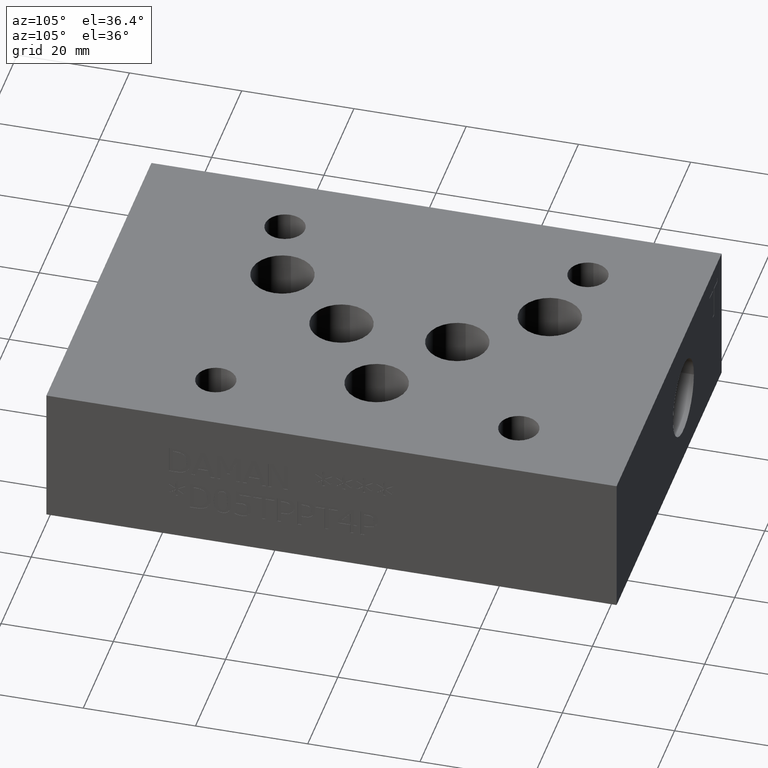
[diagram: clean part render]
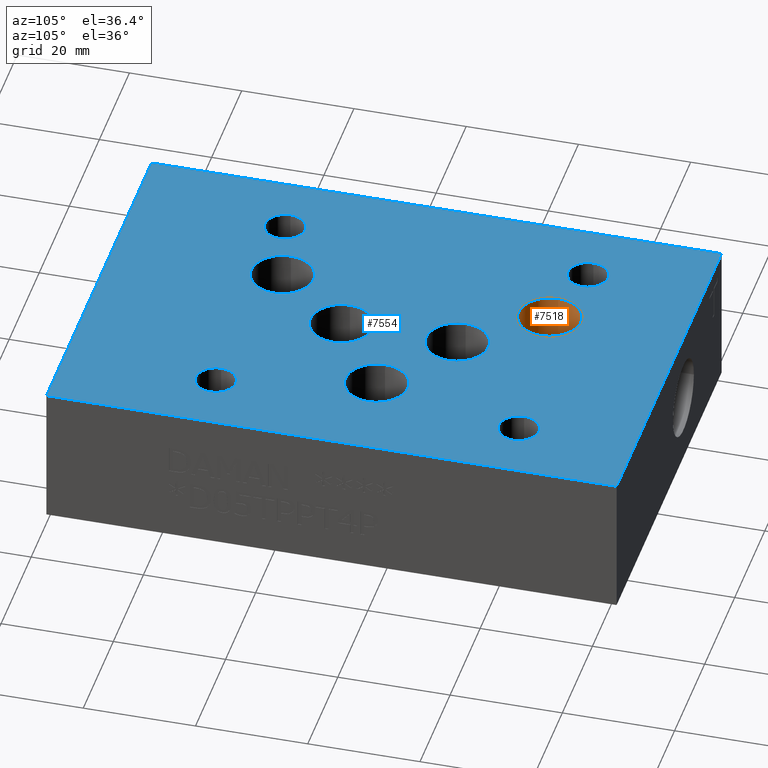
[diagram: same view with the hole feature highlighted: cylindrical wall and planar end face, labeled with their STEP entity ids]
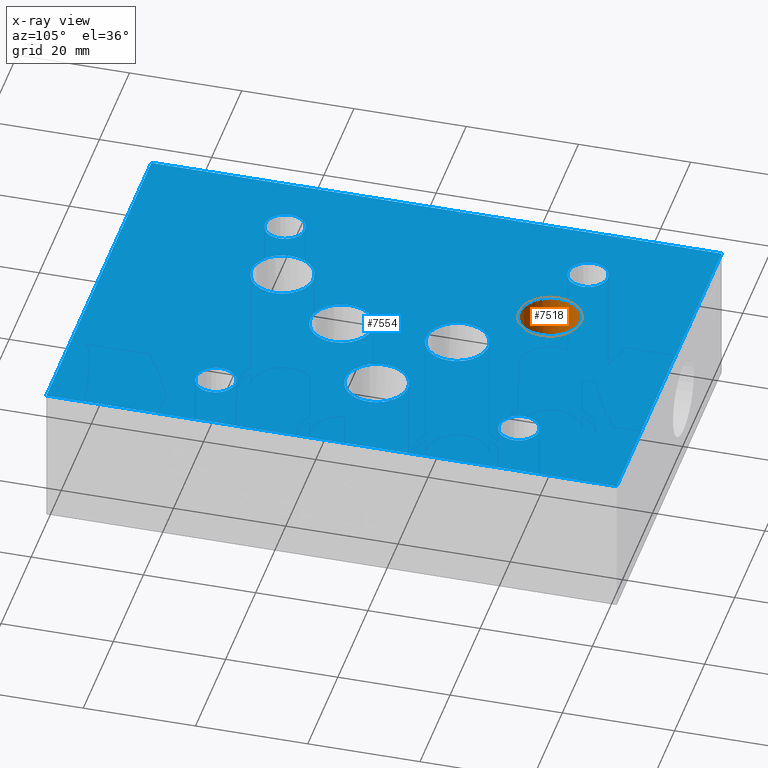
[diagram: x-ray of the same camera — body ghosted, the hole faces saturated]
A machine part, auxiliary view. The highlighted faces form one hole feature of diameter 11.1252 mm: the cylindrical wall (entity #7518, orange) and its adjacent planar end face (entity #7554, blue) — they share a circular edge in the B-rep.
The next image is the same camera in x-ray (body ghosted, the hole faces saturated) — the bore reads through the body.
Wall:
#19=CYLINDRICAL_SURFACE('',#7852,5.5626);
#66=CIRCLE('',#7853,5.5626);
#67=CIRCLE('',#7854,5.5626);
#68=CIRCLE('',#7855,5.5626);
#789=FACE_OUTER_BOUND('',#1198,.T.);
#1198=EDGE_LOOP('',(#6552,#6553,#6554,#6555,#6556,#6557,#6558,#6559,#6560));
#2020=LINE('',#12357,#2812);
#2021=LINE('',#12378,#2813);
#2022=LINE('',#12384,#2814);
#2812=VECTOR('',#9274,10.);
#2813=VECTOR('',#9275,10.);
#2814=VECTOR('',#9282,5.5626);
#2991=B_SPLINE_CURVE_WITH_KNOTS('',3,(#12324,#12325,#12326,#12327,#12328,
#12329,#12330,#12331,#12332,#12333,#12334,#12335),.UNSPECIFIED.,.F.,.F.,
(4,2,2,2,2,4),(0.838783689267504,0.839418562929267,1.04876777685813,1.25811699078699,
1.46720198010044,1.67628696941388),.UNSPECIFIED.);
#2992=B_SPLINE_CURVE_WITH_KNOTS('',3,(#12340,#12341,#12342,#12343,#12344,
#12345,#12346,#12347,#12348,#12349,#12350,#12351),.UNSPECIFIED.,.F.,.F.,
(4,2,2,2,2,4),(1.67628696941388,1.88537195872732,2.09445694804077,2.30380616196963,
2.51315537589849,2.51379024956026),.UNSPECIFIED.);
#3622=VERTEX_POINT('',#12322);
#3623=VERTEX_POINT('',#12323);
#3625=VERTEX_POINT('',#12338);
#3627=VERTEX_POINT('',#12356);
#3628=VERTEX_POINT('',#12358);
#3629=VERTEX_POINT('',#12380);
#3630=VERTEX_POINT('',#12381);
#4619=EDGE_CURVE('',#3622,#3623,#2991,.T.);
#4622=EDGE_CURVE('',#3623,#3625,#2992,.T.);
#4625=EDGE_CURVE('',#3627,#3622,#2020,.T.);
#4627=EDGE_CURVE('',#3625,#3628,#2021,.T.);
#4628=EDGE_CURVE('',#3629,#3630,#66,.T.);
#4629=EDGE_CURVE('',#3630,#3629,#67,.T.);
#4630=EDGE_CURVE('',#3630,#3623,#2022,.T.);
#4631=EDGE_CURVE('',#3627,#3628,#68,.T.);
#6552=ORIENTED_EDGE('',*,*,#4628,.F.);
#6553=ORIENTED_EDGE('',*,*,#4629,.F.);
#6554=ORIENTED_EDGE('',*,*,#4630,.T.);
#6555=ORIENTED_EDGE('',*,*,#4622,.T.);
#6556=ORIENTED_EDGE('',*,*,#4627,.T.);
#6557=ORIENTED_EDGE('',*,*,#4631,.F.);
#6558=ORIENTED_EDGE('',*,*,#4625,.T.);
#6559=ORIENTED_EDGE('',*,*,#4619,.T.);
#6560=ORIENTED_EDGE('',*,*,#4630,.F.);
#7518=ADVANCED_FACE('',(#789),#19,.F.);
#7852=AXIS2_PLACEMENT_3D('',#12379,#9276,#9277);
#7853=AXIS2_PLACEMENT_3D('',#12382,#9278,#9279);
#7854=AXIS2_PLACEMENT_3D('',#12383,#9280,#9281);
#7855=AXIS2_PLACEMENT_3D('',#12385,#9283,#9284);
#9274=DIRECTION('',(0.,0.,1.));
#9275=DIRECTION('',(0.,0.,-1.));
#9276=DIRECTION('center_axis',(0.,0.,1.));
#9277=DIRECTION('ref_axis',(1.,0.,0.));
#9278=DIRECTION('center_axis',(0.,0.,-1.));
#9279=DIRECTION('ref_axis',(1.,0.,0.));
#9280=DIRECTION('center_axis',(0.,0.,-1.));
#9281=DIRECTION('ref_axis',(1.,0.,0.));
#9282=DIRECTION('',(0.,0.,-1.));
#9283=DIRECTION('center_axis',(0.,0.,1.));
#9284=DIRECTION('ref_axis',(1.,0.,0.));
#12322=CARTESIAN_POINT('',(25.41905,72.2376036244304,14.986));
#12323=CARTESIAN_POINT('',(19.8628,77.8002,14.9933323484187));
#12324=CARTESIAN_POINT('Ctrl Pts',(25.41905,72.2376036244304,14.986));
#12325=CARTESIAN_POINT('Ctrl Pts',(25.4169329058407,72.2376060412061,14.9860027906504));
#12326=CARTESIAN_POINT('Ctrl Pts',(25.4148162381852,72.2376096661292,14.9860055807423));
#12327=CARTESIAN_POINT('Ctrl Pts',(24.7148717118974,72.2392077171578,14.9869282159338));
#12328=CARTESIAN_POINT('Ctrl Pts',(23.9708055177307,72.380246097004,14.9879094461489));
#12329=CARTESIAN_POINT('Ctrl Pts',(22.6025424370209,72.9501257121584,14.9897146044899));
#12330=CARTESIAN_POINT('Ctrl Pts',(21.9783455519381,73.3789669510442,14.9905385100303));
#12331=CARTESIAN_POINT('Ctrl Pts',(20.9936807735899,74.3668164954782,14.9918385476615));
#12332=CARTESIAN_POINT('Ctrl Pts',(20.5672311872885,74.9915260179536,14.9924017900733));
#12333=CARTESIAN_POINT('Ctrl Pts',(20.0017907986902,76.3597427872739,14.9931487017694));
#12334=CARTESIAN_POINT('Ctrl Pts',(19.8628,77.1032500356219,14.9933323484187));
#12335=CARTESIAN_POINT('Ctrl Pts',(19.8628,77.8002,14.9933323484187));
#12338=CARTESIAN_POINT('',(25.41905,83.3627963755696,14.986));
#12340=CARTESIAN_POINT('Ctrl Pts',(19.8628,77.8002,14.9933323484187));
#12341=CARTESIAN_POINT('Ctrl Pts',(19.8628,78.4971499643781,14.9933323484187));
#12342=CARTESIAN_POINT('Ctrl Pts',(20.0017907986902,79.240657212726,14.9931487017693));
#12343=CARTESIAN_POINT('Ctrl Pts',(20.5672311872885,80.6088739820464,14.9924017900733));
#12344=CARTESIAN_POINT('Ctrl Pts',(20.9936807735899,81.2335835045218,14.9918385476615));
#12345=CARTESIAN_POINT('Ctrl Pts',(21.9783455519381,82.2214330489558,14.9905385100303));
#12346=CARTESIAN_POINT('Ctrl Pts',(22.6025424370209,82.6502742878416,14.9897146044899));
#12347=CARTESIAN_POINT('Ctrl Pts',(23.9708055177307,83.220153902996,14.9879094461489));
#12348=CARTESIAN_POINT('Ctrl Pts',(24.7148717118974,83.3611922828422,14.9869282159339));
#12349=CARTESIAN_POINT('Ctrl Pts',(25.4148162381852,83.3627903338708,14.9860055807423));
#12350=CARTESIAN_POINT('Ctrl Pts',(25.4169329058407,83.3627939587939,14.9860027906504));
#12351=CARTESIAN_POINT('Ctrl Pts',(25.41905,83.3627963755696,14.986));
#12356=CARTESIAN_POINT('',(25.41905,72.2376036244304,10.414));
#12357=CARTESIAN_POINT('',(25.41905,72.2376036244304,7.493));
#12358=CARTESIAN_POINT('',(25.41905,83.3627963755696,10.414));
#12378=CARTESIAN_POINT('',(25.41905,83.3627963755696,7.493));
#12379=CARTESIAN_POINT('Origin',(25.4254,77.8002,17.907));
#12380=CARTESIAN_POINT('',(30.988,77.8002,25.4));
#12381=CARTESIAN_POINT('',(19.8628,77.8002,25.4));
#12382=CARTESIAN_POINT('Origin',(25.4254,77.8002,25.4));
#12383=CARTESIAN_POINT('Origin',(25.4254,77.8002,25.4));
#12384=CARTESIAN_POINT('',(19.8628,77.8002,17.907));
#12385=CARTESIAN_POINT('Origin',(25.4254,77.8002,10.414));
End face:
#66=CIRCLE('',#7853,5.5626);
#67=CIRCLE('',#7854,5.5626);
#81=CIRCLE('',#7877,5.55625);
#82=CIRCLE('',#7878,5.55625);
#84=CIRCLE('',#7881,5.5626);
#85=CIRCLE('',#7882,5.5626);
#87=CIRCLE('',#7885,5.55625);
#88=CIRCLE('',#7886,5.55625);
#90=CIRCLE('',#7889,5.55625);
#91=CIRCLE('',#7890,5.55625);
#115=CIRCLE('',#7925,3.5687);
#118=CIRCLE('',#7929,3.5687);
#121=CIRCLE('',#7933,3.5687);
#124=CIRCLE('',#7937,3.5687);
#165=FACE_BOUND('',#1242,.T.);
#166=FACE_BOUND('',#1243,.T.);
#167=FACE_BOUND('',#1244,.T.);
#168=FACE_BOUND('',#1245,.T.);
#169=FACE_BOUND('',#1246,.T.);
#170=FACE_BOUND('',#1247,.T.);
#171=FACE_BOUND('',#1248,.T.);
#172=FACE_BOUND('',#1249,.T.);
#173=FACE_BOUND('',#1250,.T.);
#449=PLANE('',#7947);
#825=FACE_OUTER_BOUND('',#1241,.T.);
#1241=EDGE_LOOP('',(#6748,#6749,#6750,#6751));
#1242=EDGE_LOOP('',(#6752));
#1243=EDGE_LOOP('',(#6753));
#1244=EDGE_LOOP('',(#6754));
#1245=EDGE_LOOP('',(#6755));
#1246=EDGE_LOOP('',(#6756,#6757));
#1247=EDGE_LOOP('',(#6758,#6759));
#1248=EDGE_LOOP('',(#6760,#6761));
#1249=EDGE_LOOP('',(#6762,#6763));
#1250=EDGE_LOOP('',(#6764,#6765));
#1575=LINE('',#11112,#2367);
#1987=LINE('',#12226,#2779);
#2049=LINE('',#12748,#2841);
#2052=LINE('',#12752,#2844);
#2367=VECTOR('',#8457,10.);
#2779=VECTOR('',#9169,10.);
#2841=VECTOR('',#9487,10.);
#2844=VECTOR('',#9492,10.);
#3292=VERTEX_POINT('',#11109);
#3293=VERTEX_POINT('',#11111);
#3589=VERTEX_POINT('',#12225);
#3629=VERTEX_POINT('',#12380);
#3630=VERTEX_POINT('',#12381);
#3659=VERTEX_POINT('',#12625);
#3660=VERTEX_POINT('',#12626);
#3661=VERTEX_POINT('',#12632);
#3662=VERTEX_POINT('',#12633);
#3663=VERTEX_POINT('',#12639);
#3664=VERTEX_POINT('',#12640);
#3665=VERTEX_POINT('',#12646);
#3666=VERTEX_POINT('',#12647);
#3689=VERTEX_POINT('',#12712);
#3692=VERTEX_POINT('',#12720);
#3695=VERTEX_POINT('',#12728);
#3698=VERTEX_POINT('',#12736);
#3700=VERTEX_POINT('',#12747);
#4129=EDGE_CURVE('',#3293,#3292,#1575,.T.);
#4573=EDGE_CURVE('',#3589,#3293,#1987,.T.);
#4628=EDGE_CURVE('',#3629,#3630,#66,.T.);
#4629=EDGE_CURVE('',#3630,#3629,#67,.T.);
#4668=EDGE_CURVE('',#3659,#3660,#81,.T.);
#4669=EDGE_CURVE('',#3660,#3659,#82,.T.);
#4672=EDGE_CURVE('',#3661,#3662,#84,.T.);
#4673=EDGE_CURVE('',#3662,#3661,#85,.T.);
#4676=EDGE_CURVE('',#3663,#3664,#87,.T.);
#4677=EDGE_CURVE('',#3664,#3663,#88,.T.);
#4680=EDGE_CURVE('',#3665,#3666,#90,.T.);
#4681=EDGE_CURVE('',#3666,#3665,#91,.T.);
#4712=EDGE_CURVE('',#3689,#3689,#115,.T.);
#4716=EDGE_CURVE('',#3692,#3692,#118,.T.);
#4720=EDGE_CURVE('',#3695,#3695,#121,.T.);
#4724=EDGE_CURVE('',#3698,#3698,#124,.T.);
#4726=EDGE_CURVE('',#3700,#3589,#2049,.T.);
#4729=EDGE_CURVE('',#3292,#3700,#2052,.T.);
#6748=ORIENTED_EDGE('',*,*,#4573,.T.);
#6749=ORIENTED_EDGE('',*,*,#4129,.T.);
#6750=ORIENTED_EDGE('',*,*,#4729,.T.);
#6751=ORIENTED_EDGE('',*,*,#4726,.T.);
#6752=ORIENTED_EDGE('',*,*,#4712,.T.);
#6753=ORIENTED_EDGE('',*,*,#4716,.T.);
#6754=ORIENTED_EDGE('',*,*,#4720,.T.);
#6755=ORIENTED_EDGE('',*,*,#4724,.T.);
#6756=ORIENTED_EDGE('',*,*,#4668,.T.);
#6757=ORIENTED_EDGE('',*,*,#4669,.T.);
#6758=ORIENTED_EDGE('',*,*,#4676,.T.);
#6759=ORIENTED_EDGE('',*,*,#4677,.T.);
#6760=ORIENTED_EDGE('',*,*,#4680,.T.);
#6761=ORIENTED_EDGE('',*,*,#4681,.T.);
#6762=ORIENTED_EDGE('',*,*,#4672,.T.);
#6763=ORIENTED_EDGE('',*,*,#4673,.T.);
#6764=ORIENTED_EDGE('',*,*,#4628,.T.);
#6765=ORIENTED_EDGE('',*,*,#4629,.T.);
#7554=ADVANCED_FACE('',(#825,#165,#166,#167,#168,#169,#170,#171,#172,#173),
#449,.T.);
#7853=AXIS2_PLACEMENT_3D('',#12382,#9278,#9279);
#7854=AXIS2_PLACEMENT_3D('',#12383,#9280,#9281);
#7877=AXIS2_PLACEMENT_3D('',#12627,#9339,#9340);
#7878=AXIS2_PLACEMENT_3D('',#12628,#9341,#9342);
#7881=AXIS2_PLACEMENT_3D('',#12634,#9348,#9349);
#7882=AXIS2_PLACEMENT_3D('',#12635,#9350,#9351);
#7885=AXIS2_PLACEMENT_3D('',#12641,#9357,#9358);
#7886=AXIS2_PLACEMENT_3D('',#12642,#9359,#9360);
#7889=AXIS2_PLACEMENT_3D('',#12648,#9366,#9367);
#7890=AXIS2_PLACEMENT_3D('',#12649,#9368,#9369);
#7925=AXIS2_PLACEMENT_3D('',#12714,#9445,#9446);
#7929=AXIS2_PLACEMENT_3D('',#12722,#9454,#9455);
#7933=AXIS2_PLACEMENT_3D('',#12730,#9463,#9464);
#7937=AXIS2_PLACEMENT_3D('',#12738,#9472,#9473);
#7947=AXIS2_PLACEMENT_3D('',#12755,#9497,#9498);
#8457=DIRECTION('',(0.,1.,0.));
#9169=DIRECTION('',(1.,0.,0.));
#9278=DIRECTION('center_axis',(0.,0.,-1.));
#9279=DIRECTION('ref_axis',(1.,0.,0.));
#9280=DIRECTION('center_axis',(0.,0.,-1.));
#9281=DIRECTION('ref_axis',(1.,0.,0.));
#9339=DIRECTION('center_axis',(0.,0.,-1.));
#9340=DIRECTION('ref_axis',(1.,0.,0.));
#9341=DIRECTION('center_axis',(0.,0.,-1.));
#9342=DIRECTION('ref_axis',(1.,0.,0.));
#9348=DIRECTION('center_axis',(0.,0.,-1.));
#9349=DIRECTION('ref_axis',(1.,0.,0.));
#9350=DIRECTION('center_axis',(0.,0.,-1.));
#9351=DIRECTION('ref_axis',(1.,0.,0.));
#9357=DIRECTION('center_axis',(0.,0.,-1.));
#9358=DIRECTION('ref_axis',(1.,0.,0.));
#9359=DIRECTION('center_axis',(0.,0.,-1.));
#9360=DIRECTION('ref_axis',(1.,0.,0.));
#9366=DIRECTION('center_axis',(0.,0.,-1.));
#9367=DIRECTION('ref_axis',(1.,0.,0.));
#9368=DIRECTION('center_axis',(0.,0.,-1.));
#9369=DIRECTION('ref_axis',(1.,0.,0.));
#9445=DIRECTION('center_axis',(0.,0.,-1.));
#9446=DIRECTION('ref_axis',(1.,0.,0.));
#9454=DIRECTION('center_axis',(0.,0.,-1.));
#9455=DIRECTION('ref_axis',(1.,0.,0.));
#9463=DIRECTION('center_axis',(0.,0.,-1.));
#9464=DIRECTION('ref_axis',(1.,0.,0.));
#9472=DIRECTION('center_axis',(0.,0.,-1.));
#9473=DIRECTION('ref_axis',(1.,0.,0.));
#9487=DIRECTION('',(0.,-1.,0.));
#9492=DIRECTION('',(-1.,0.,0.));
#9497=DIRECTION('center_axis',(0.,0.,1.));
#9498=DIRECTION('ref_axis',(1.,0.,0.));
#11109=CARTESIAN_POINT('',(69.85,101.6,25.4));
#11111=CARTESIAN_POINT('',(69.85,0.,25.4));
#11112=CARTESIAN_POINT('',(69.85,0.,25.4));
#12225=CARTESIAN_POINT('',(0.,0.,25.4));
#12226=CARTESIAN_POINT('',(0.,0.,25.4));
#12380=CARTESIAN_POINT('',(30.988,77.8002,25.4));
#12381=CARTESIAN_POINT('',(19.8628,77.8002,25.4));
#12382=CARTESIAN_POINT('Origin',(25.4254,77.8002,25.4));
#12383=CARTESIAN_POINT('Origin',(25.4254,77.8002,25.4));
#12625=CARTESIAN_POINT('',(42.09923,43.65752,25.4));
#12626=CARTESIAN_POINT('',(30.98673,43.65752,25.4));
#12627=CARTESIAN_POINT('Origin',(36.54298,43.65752,25.4));
#12628=CARTESIAN_POINT('Origin',(36.54298,43.65752,25.4));
#12632=CARTESIAN_POINT('',(57.2008,53.975,25.4));
#12633=CARTESIAN_POINT('',(46.0756,53.975,25.4));
#12634=CARTESIAN_POINT('Origin',(51.6382,53.975,25.4));
#12635=CARTESIAN_POINT('Origin',(51.6382,53.975,25.4));
#12639=CARTESIAN_POINT('',(42.09415,64.29248,25.4));
#12640=CARTESIAN_POINT('',(30.98165,64.29248,25.4));
#12641=CARTESIAN_POINT('Origin',(36.5379,64.29248,25.4));
#12642=CARTESIAN_POINT('Origin',(36.5379,64.29248,25.4));
#12646=CARTESIAN_POINT('',(30.98165,30.1625,25.4));
#12647=CARTESIAN_POINT('',(19.86915,30.1625,25.4));
#12648=CARTESIAN_POINT('Origin',(25.4254,30.1625,25.4));
#12649=CARTESIAN_POINT('Origin',(25.4254,30.1625,25.4));
#12712=CARTESIAN_POINT('',(54.3814,27.0002,25.4));
#12714=CARTESIAN_POINT('Origin',(57.9501,27.0002,25.4));
#12720=CARTESIAN_POINT('',(8.3312,80.9752,25.4));
#12722=CARTESIAN_POINT('Origin',(11.8999,80.9752,25.4));
#12728=CARTESIAN_POINT('',(54.3814,80.9879,25.4));
#12730=CARTESIAN_POINT('Origin',(57.9501,80.9879,25.4));
#12736=CARTESIAN_POINT('',(8.3439,27.0002,25.4));
#12738=CARTESIAN_POINT('Origin',(11.9126,27.0002,25.4));
#12747=CARTESIAN_POINT('',(0.,101.6,25.4));
#12748=CARTESIAN_POINT('',(0.,101.6,25.4));
#12752=CARTESIAN_POINT('',(69.85,101.6,25.4));
#12755=CARTESIAN_POINT('Origin',(34.925,50.8,25.4));